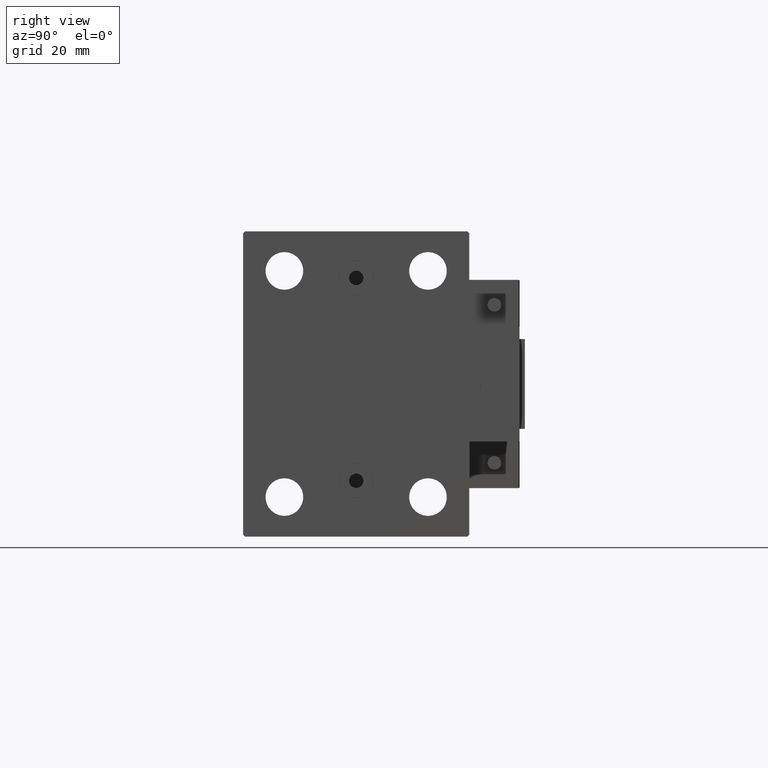
[diagram: clean part render]
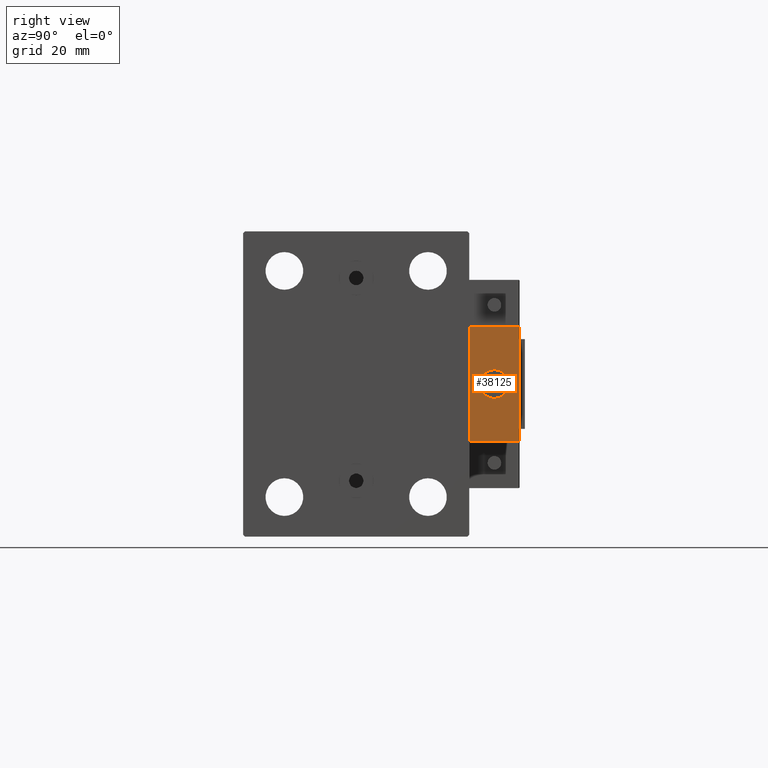
[diagram: same view with one face highlighted and labeled with its STEP entity id]
A machine part, right view. The second image highlights one B-rep face of the part: STEP entity #38125.
In plain terms, the highlighted planar face has unit normal (-1, 0, 0).
Its self-contained STEP definition (entity closure, byte-faithful):
#796 = CARTESIAN_POINT ( 'NONE',  ( 10.00000000000000000, -7.000000000000000000, -16.00000000000000711 ) ) ;
#929 = FACE_OUTER_BOUND ( 'NONE', #32574, .T. ) ;
#988 = VECTOR ( 'NONE', #11031, 1000.000000000000000 ) ;
#1635 = DIRECTION ( 'NONE',  ( 0.000000000000000000, -1.000000000000000000, 0.000000000000000000 ) ) ;
#4022 = ORIENTED_EDGE ( 'NONE', *, *, #40241, .T. ) ;
#4113 = VECTOR ( 'NONE', #1635, 1000.000000000000000 ) ;
#4232 = FACE_BOUND ( 'NONE', #44636, .T. ) ;
#5428 = CARTESIAN_POINT ( 'NONE',  ( 10.00000000000000000, 7.000000000000000000, -16.00000000000000711 ) ) ;
#6600 = ORIENTED_EDGE ( 'NONE', *, *, #18491, .F. ) ;
#7214 = EDGE_CURVE ( 'NONE', #43380, #28957, #34602, .T. ) ;
#7263 = DIRECTION ( 'NONE',  ( 0.000000000000000000, 0.000000000000000000, -1.000000000000000000 ) ) ;
#7289 = CARTESIAN_POINT ( 'NONE',  ( 10.00000000000000000, 7.000000000000000000, -16.00000000000000711 ) ) ;
#7542 = VERTEX_POINT ( 'NONE', #24843 ) ;
#11031 = DIRECTION ( 'NONE',  ( 0.000000000000000000, -1.000000000000000000, 0.000000000000000000 ) ) ;
#12620 = VERTEX_POINT ( 'NONE', #796 ) ;
#14232 = ORIENTED_EDGE ( 'NONE', *, *, #25151, .T. ) ;
#15559 = CARTESIAN_POINT ( 'NONE',  ( 10.00000000000000000, 7.000000000000000000, 15.99999999999999289 ) ) ;
#16368 = DIRECTION ( 'NONE',  ( -1.000000000000000000, 0.000000000000000000, -0.000000000000000000 ) ) ;
#16984 = DIRECTION ( 'NONE',  ( -1.000000000000000000, 0.000000000000000000, 0.000000000000000000 ) ) ;
#18491 = EDGE_CURVE ( 'NONE', #31653, #12620, #28477, .T. ) ;
#24570 = EDGE_CURVE ( 'NONE', #40772, #7542, #49501, .T. ) ;
#24843 = CARTESIAN_POINT ( 'NONE',  ( 10.00000000000000000, -7.000000000000000000, 15.99999999999999289 ) ) ;
#25151 = EDGE_CURVE ( 'NONE', #28957, #43380, #32635, .T. ) ;
#27078 = AXIS2_PLACEMENT_3D ( 'NONE', #47524, #16368, #31826 ) ;
#27772 = CARTESIAN_POINT ( 'NONE',  ( 10.00000000000000000, 7.000000000000000000, 15.99999999999999289 ) ) ;
#27830 = CARTESIAN_POINT ( 'NONE',  ( 10.00000000000000000, 0.000000000000000000, 0.000000000000000000 ) ) ;
#27973 = ORIENTED_EDGE ( 'NONE', *, *, #7214, .T. ) ;
#28477 = LINE ( 'NONE', #5428, #4113 ) ;
#28957 = VERTEX_POINT ( 'NONE', #31917 ) ;
#30554 = LINE ( 'NONE', #37900, #33421 ) ;
#31653 = VERTEX_POINT ( 'NONE', #7289 ) ;
#31826 = DIRECTION ( 'NONE',  ( -0.000000000000000000, 0.000000000000000000, 1.000000000000000000 ) ) ;
#31917 = CARTESIAN_POINT ( 'NONE',  ( 10.00000000000000000, 4.898587196589412829E-16, -4.000000000000000000 ) ) ;
#31988 = DIRECTION ( 'NONE',  ( 0.000000000000000000, 0.000000000000000000, -1.000000000000000000 ) ) ;
#32574 = EDGE_LOOP ( 'NONE', ( #4022, #6600, #37206, #44329 ) ) ;
#32635 = CIRCLE ( 'NONE', #39100, 4.000000000000000000 ) ;
#33187 = DIRECTION ( 'NONE',  ( 0.000000000000000000, 0.000000000000000000, 1.000000000000000000 ) ) ;
#33421 = VECTOR ( 'NONE', #7263, 1000.000000000000000 ) ;
#33430 = CARTESIAN_POINT ( 'NONE',  ( 10.00000000000000000, 0.000000000000000000, 0.000000000000000000 ) ) ;
#34547 = EDGE_CURVE ( 'NONE', #40772, #31653, #30554, .T. ) ;
#34602 = CIRCLE ( 'NONE', #43530, 4.000000000000000000 ) ;
#37206 = ORIENTED_EDGE ( 'NONE', *, *, #34547, .F. ) ;
#37714 = CARTESIAN_POINT ( 'NONE',  ( 10.00000000000000000, -7.000000000000000000, 15.99999999999999289 ) ) ;
#37900 = CARTESIAN_POINT ( 'NONE',  ( 10.00000000000000000, 7.000000000000000000, 15.99999999999999289 ) ) ;
#38125 = ADVANCED_FACE ( 'NONE', ( #4232, #929 ), #39662, .F. ) ;
#39100 = AXIS2_PLACEMENT_3D ( 'NONE', #33430, #16984, #33187 ) ;
#39466 = DIRECTION ( 'NONE',  ( 0.000000000000000000, 0.000000000000000000, 1.000000000000000000 ) ) ;
#39662 = PLANE ( 'NONE',  #27078 ) ;
#40241 = EDGE_CURVE ( 'NONE', #7542, #12620, #40815, .T. ) ;
#40772 = VERTEX_POINT ( 'NONE', #27772 ) ;
#40815 = LINE ( 'NONE', #37714, #44117 ) ;
#43272 = DIRECTION ( 'NONE',  ( -1.000000000000000000, 0.000000000000000000, 0.000000000000000000 ) ) ;
#43380 = VERTEX_POINT ( 'NONE', #49054 ) ;
#43530 = AXIS2_PLACEMENT_3D ( 'NONE', #27830, #43272, #39466 ) ;
#44117 = VECTOR ( 'NONE', #31988, 1000.000000000000000 ) ;
#44329 = ORIENTED_EDGE ( 'NONE', *, *, #24570, .T. ) ;
#44636 = EDGE_LOOP ( 'NONE', ( #27973, #14232 ) ) ;
#47524 = CARTESIAN_POINT ( 'NONE',  ( 10.00000000000000000, 0.000000000000000000, 0.000000000000000000 ) ) ;
#49054 = CARTESIAN_POINT ( 'NONE',  ( 10.00000000000000000, 0.000000000000000000, 4.000000000000000000 ) ) ;
#49501 = LINE ( 'NONE', #15559, #988 ) ;